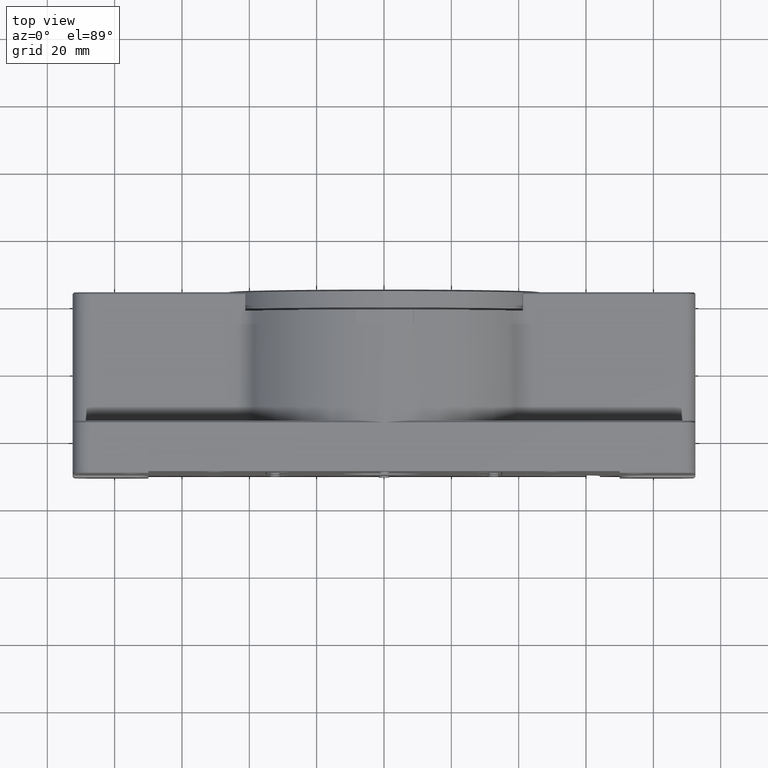
[diagram: clean part render]
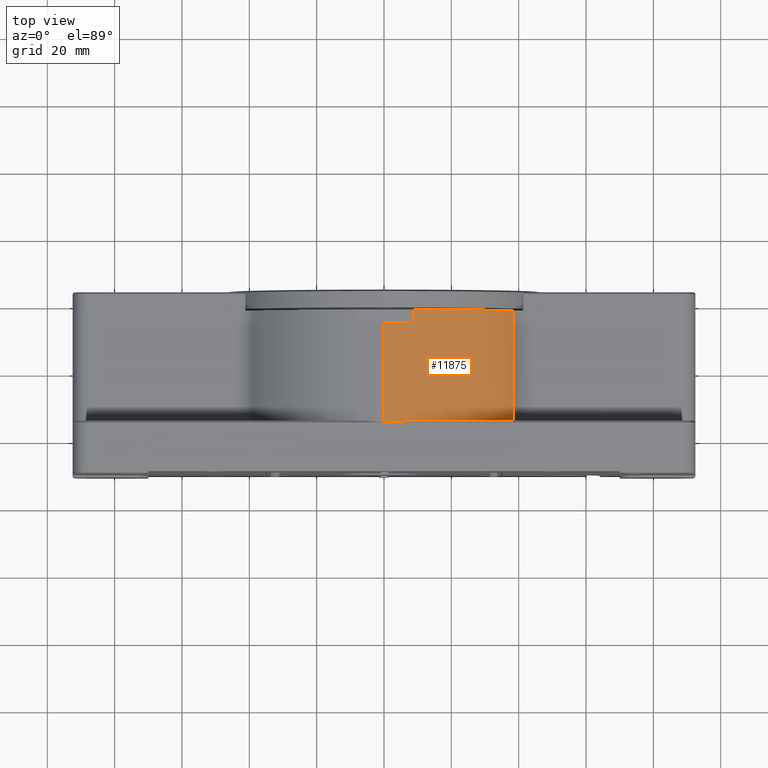
[diagram: same view with one face highlighted and labeled with its STEP entity id]
A machine part, top view. The second image highlights one B-rep face of the part: STEP entity #11875.
In plain terms, the highlighted cylindrical surface (partial cylindrical patch) has radius 50 mm, axis along (0, 1, 0).
Its self-contained STEP definition (entity closure, byte-faithful):
#574 = LINE ( 'NONE', #32808, #20373 ) ;
#678 = ORIENTED_EDGE ( 'NONE', *, *, #47879, .T. ) ;
#1046 = VERTEX_POINT ( 'NONE', #30376 ) ;
#1298 = CYLINDRICAL_SURFACE ( 'NONE', #48749, 50.00000000000000000 ) ;
#1959 = ORIENTED_EDGE ( 'NONE', *, *, #11757, .T. ) ;
#2405 = CARTESIAN_POINT ( 'NONE',  ( 36.69119366709716000, 18.00000000000001400, 34.09498539685716900 ) ) ;
#3035 = CARTESIAN_POINT ( 'NONE',  ( 8.682408883346054700, 14.00000000000000200, 49.24038765061040100 ) ) ;
#3417 = VERTEX_POINT ( 'NONE', #24314 ) ;
#3682 = CARTESIAN_POINT ( 'NONE',  ( 4.714054118252710700, -15.33333414623585600, 49.83333414623586300 ) ) ;
#4121 = DIRECTION ( 'NONE',  ( -0.0000000000000000000, 1.000000000000000000, -0.0000000000000000000 ) ) ;
#5280 = CARTESIAN_POINT ( 'NONE',  ( 38.56946079199170200, -15.00000000000000000, 31.81818181818081500 ) ) ;
#6415 = CARTESIAN_POINT ( 'NONE',  ( 11.58876718559738700, 18.00000000000000700, 48.72791826631750900 ) ) ;
#8384 = CARTESIAN_POINT ( 'NONE',  ( 38.56946079199027400, 18.00000000000000700, 31.81818181817964900 ) ) ;
#9979 = EDGE_CURVE ( 'NONE', #3417, #15714, #32306, .T. ) ;
#10478 = B_SPLINE_CURVE_WITH_KNOTS ( 'NONE', 3,
 ( #36313, #15591, #11695, #40809, #15944, #44938, #20204, #49011, #24364, #53116 ),
 .UNSPECIFIED., .F., .F.,
 ( 4, 2, 2, 2, 4 ),
 ( 0.0000000000000000000, 0.2499999999999999400, 0.4999999999999998900, 0.7499999999999997800, 1.000000000000000000 ),
 .UNSPECIFIED. ) ;
#11695 = CARTESIAN_POINT ( 'NONE',  ( 13.11374254808532000, -15.00000000000000200, 48.34794092894366500 ) ) ;
#11757 = EDGE_CURVE ( 'NONE', #15714, #1046, #32042, .T. ) ;
#11875 = ADVANCED_FACE ( 'NONE', ( #24997 ), #1298, .T. ) ;
#12641 = VERTEX_POINT ( 'NONE', #25082 ) ;
#14026 = CARTESIAN_POINT ( 'NONE',  ( 7.053367818667504200, -15.00000000134283000, 49.50000001141427900 ) ) ;
#15591 = CARTESIAN_POINT ( 'NONE',  ( 10.10373047814954200, -15.00000000000000200, 49.06534689687826800 ) ) ;
#15714 = VERTEX_POINT ( 'NONE', #3035 ) ;
#15944 = CARTESIAN_POINT ( 'NONE',  ( 21.77756542581678200, -15.00000000000000200, 45.11353765567891100 ) ) ;
#16222 = DIRECTION ( 'NONE',  ( 0.0000000000000000000, 1.000000000000000000, 0.0000000000000000000 ) ) ;
#16418 = CARTESIAN_POINT ( 'NONE',  ( 1.403007775470910200E-014, -15.49999638430624000, 49.99999879476875700 ) ) ;
#16846 = ORIENTED_EDGE ( 'NONE', *, *, #48800, .F. ) ;
#18133 = VERTEX_POINT ( 'NONE', #41962 ) ;
#19165 = CARTESIAN_POINT ( 'NONE',  ( 19.97006949761052800, 18.00000000000001100, 45.93373528766667800 ) ) ;
#20204 = CARTESIAN_POINT ( 'NONE',  ( 29.69921192603024100, -14.99999999999999800, 40.34167134191184100 ) ) ;
#20373 = VECTOR ( 'NONE', #16222, 1000.000000000000000 ) ;
#23378 = CARTESIAN_POINT ( 'NONE',  ( 27.73018924409380000, 18.00000000000000700, 41.71029030950794000 ) ) ;
#24314 = CARTESIAN_POINT ( 'NONE',  ( 8.682408883346230500, 18.00000000000001100, 49.24038765061033700 ) ) ;
#24364 = CARTESIAN_POINT ( 'NONE',  ( 36.60871344624192100, -14.99999999999999500, 34.19496652282371200 ) ) ;
#24997 = FACE_OUTER_BOUND ( 'NONE', #33852, .T. ) ;
#25082 = CARTESIAN_POINT ( 'NONE',  ( 1.403007775470910200E-014, -15.49999638430624000, 49.99999879476875700 ) ) ;
#26444 = EDGE_CURVE ( 'NONE', #38542, #42532, #10478, .T. ) ;
#26778 = B_SPLINE_CURVE_WITH_KNOTS ( 'NONE', 3,
 ( #31554, #6415, #43965, #19165, #48052, #23378, #52123, #27544, #2405, #31735 ),
 .UNSPECIFIED., .F., .F.,
 ( 4, 2, 2, 2, 4 ),
 ( 0.0000000000000000000, 0.2499999999999998900, 0.4999999999999998900, 0.7499999999999998900, 1.000000000000000000 ),
 .UNSPECIFIED. ) ;
#27544 = CARTESIAN_POINT ( 'NONE',  ( 34.62764267060593000, 18.00000000000001400, 36.18893706238988300 ) ) ;
#27823 = VECTOR ( 'NONE', #4121, 1000.000000000000000 ) ;
#28840 = CARTESIAN_POINT ( 'NONE',  ( 7.053367818667504200, -15.00000000134283000, 49.50000001141427900 ) ) ;
#30376 = CARTESIAN_POINT ( 'NONE',  ( -7.306519331029764400E-015, 14.00000000000000200, 50.00000000000000000 ) ) ;
#31554 = CARTESIAN_POINT ( 'NONE',  ( 8.682408883346230500, 18.00000000000001100, 49.24038765061033700 ) ) ;
#31735 = CARTESIAN_POINT ( 'NONE',  ( 38.56946079199142500, 18.00000000000001100, 31.81818181818106000 ) ) ;
#32042 = B_SPLINE_CURVE_WITH_KNOTS ( 'NONE', 3,
 ( #49843, #49898, #49835, #49764 ),
 .UNSPECIFIED., .F., .F.,
 ( 4, 4 ),
 ( 0.0000000000000000000, 1.000000000000000000 ),
 .UNSPECIFIED. ) ;
#32120 = EDGE_CURVE ( 'NONE', #12641, #1046, #574, .T. ) ;
#32306 = LINE ( 'NONE', #35687, #44519 ) ;
#32721 = ORIENTED_EDGE ( 'NONE', *, *, #32120, .F. ) ;
#32808 = CARTESIAN_POINT ( 'NONE',  ( 0.0000000000000000000, -15.70100000000000100, 50.00000000000000000 ) ) ;
#33393 = ORIENTED_EDGE ( 'NONE', *, *, #9979, .T. ) ;
#33852 = EDGE_LOOP ( 'NONE', ( #32721, #38537, #52627, #678, #16846, #33393, #1959 ) ) ;
#35687 = CARTESIAN_POINT ( 'NONE',  ( 8.682408883346306900, -15.70100000000000100, 49.24038765061044400 ) ) ;
#36095 = DIRECTION ( 'NONE',  ( -0.0000000000000000000, -1.000000000000000000, -0.0000000000000000000 ) ) ;
#36313 = CARTESIAN_POINT ( 'NONE',  ( 7.053367818667504200, -15.00000000134283000, 49.50000001141427900 ) ) ;
#38537 = ORIENTED_EDGE ( 'NONE', *, *, #47485, .F. ) ;
#38542 = VERTEX_POINT ( 'NONE', #14026 ) ;
#38855 = B_SPLINE_CURVE_WITH_KNOTS ( 'NONE', 3,
 ( #28840, #3682, #41269, #16418 ),
 .UNSPECIFIED., .F., .F.,
 ( 4, 4 ),
 ( 0.0000000000000000000, 1.000000000000000000 ),
 .UNSPECIFIED. ) ;
#40809 = CARTESIAN_POINT ( 'NONE',  ( 18.95071674630119700, -15.00000000000000000, 46.37201710609047500 ) ) ;
#41269 = CARTESIAN_POINT ( 'NONE',  ( 2.362931512285346700, -15.50000000807218800, 50.00000000807219900 ) ) ;
#41962 = CARTESIAN_POINT ( 'NONE',  ( 38.56946079199142500, 18.00000000000001100, 31.81818181818106000 ) ) ;
#42532 = VERTEX_POINT ( 'NONE', #5280 ) ;
#43965 = CARTESIAN_POINT ( 'NONE',  ( 14.42818828561567000, 18.00000000000000700, 47.96386777800651700 ) ) ;
#44519 = VECTOR ( 'NONE', #36095, 1000.000000000000000 ) ;
#44938 = CARTESIAN_POINT ( 'NONE',  ( 27.15186524374107400, -15.00000000000000000, 42.09833547151022500 ) ) ;
#47485 = EDGE_CURVE ( 'NONE', #38542, #12641, #38855, .T. ) ;
#47879 = EDGE_CURVE ( 'NONE', #42532, #18133, #49678, .T. ) ;
#48052 = CARTESIAN_POINT ( 'NONE',  ( 22.63122896352613400, 18.00000000000000400, 44.68257719769548000 ) ) ;
#48277 = DIRECTION ( 'NONE',  ( 0.0000000000000000000, 1.000000000000000000, 0.0000000000000000000 ) ) ;
#48379 = DIRECTION ( 'NONE',  ( 0.0000000000000000000, 0.0000000000000000000, 1.000000000000000000 ) ) ;
#48615 = CARTESIAN_POINT ( 'NONE',  ( 0.0000000000000000000, -15.70100000000000100, 0.0000000000000000000 ) ) ;
#48749 = AXIS2_PLACEMENT_3D ( 'NONE', #48615, #48277, #48379 ) ;
#48800 = EDGE_CURVE ( 'NONE', #3417, #18133, #26778, .T. ) ;
#49011 = CARTESIAN_POINT ( 'NONE',  ( 34.42768197909298800, -14.99999999999999800, 36.38994846427411300 ) ) ;
#49678 = LINE ( 'NONE', #8384, #27823 ) ;
#49764 = CARTESIAN_POINT ( 'NONE',  ( -7.306519331029764400E-015, 14.00000000000000200, 50.00000000000000000 ) ) ;
#49835 = CARTESIAN_POINT ( 'NONE',  ( 2.908882086657144800, 14.00000000000000200, 50.00000000000000000 ) ) ;
#49843 = CARTESIAN_POINT ( 'NONE',  ( 8.682408883346054700, 14.00000000000000200, 49.24038765061040100 ) ) ;
#49898 = CARTESIAN_POINT ( 'NONE',  ( 5.817719251808018300, 14.00000000000000200, 49.74550972400642500 ) ) ;
#52123 = CARTESIAN_POINT ( 'NONE',  ( 30.12997293443011100, 18.00000000000001100, 40.01113656717032500 ) ) ;
#52627 = ORIENTED_EDGE ( 'NONE', *, *, #26444, .T. ) ;
#53116 = CARTESIAN_POINT ( 'NONE',  ( 38.56946079199170200, -15.00000000000000000, 31.81818181818081500 ) ) ;